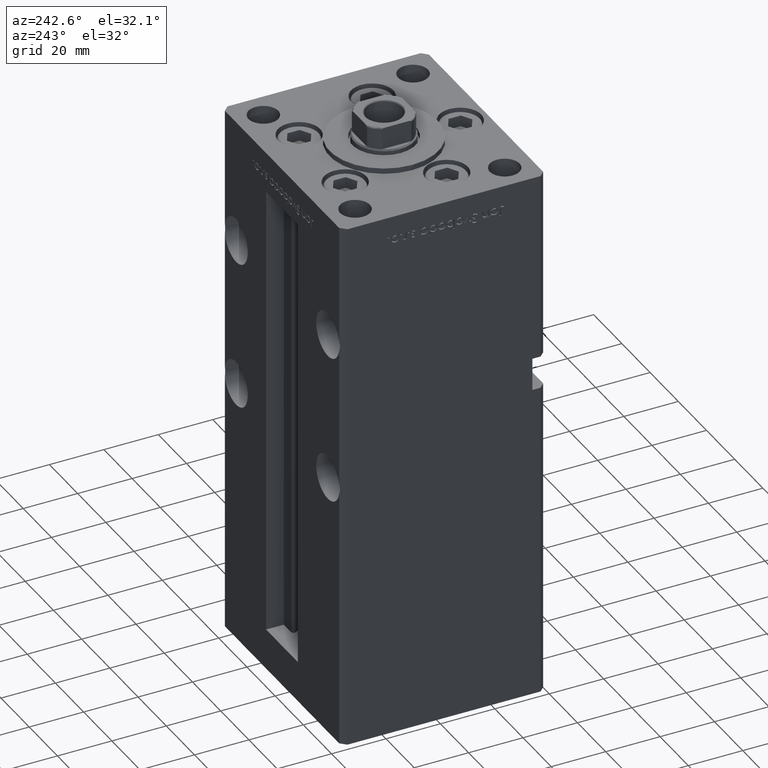
[diagram: clean part render]
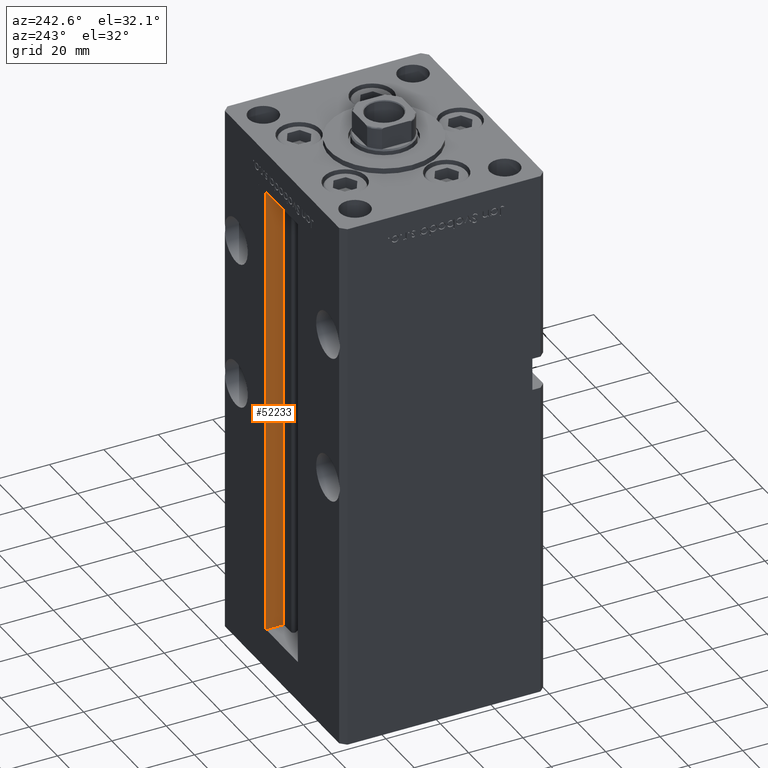
[diagram: same view with one face highlighted and labeled with its STEP entity id]
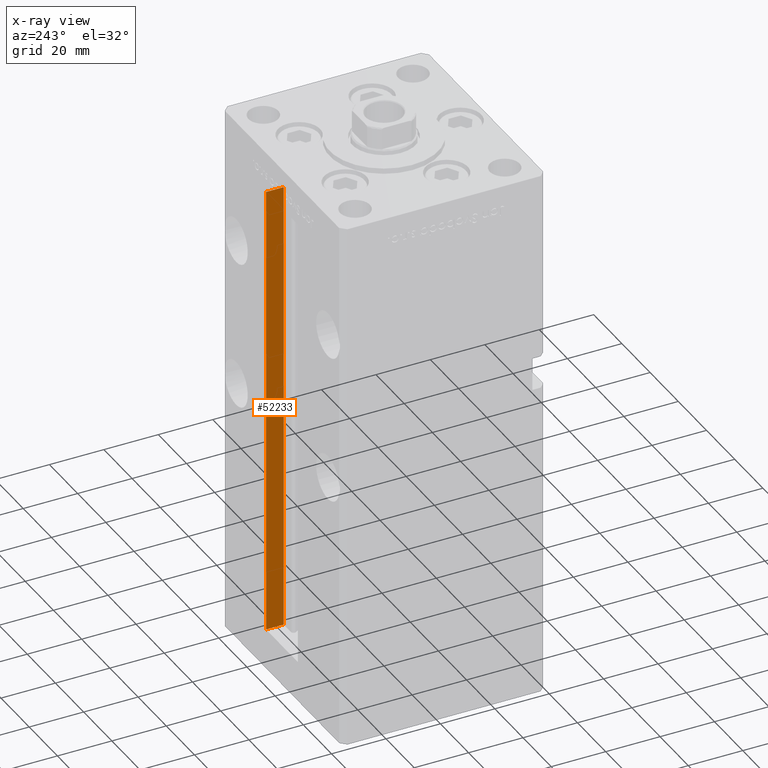
[diagram: x-ray of the same camera — body ghosted, the highlighted face saturated]
A machine part, auxiliary view. The second image highlights one B-rep face of the part: STEP entity #52233.
The next image is the same camera in x-ray: the body ghosted, the highlighted face saturated — about 0% of this face is hidden behind the body in this view.
In plain terms, the highlighted planar face has unit normal (1, 0, 0).
Its self-contained STEP definition (entity closure, byte-faithful):
#285 = VERTEX_POINT ( 'NONE', #4088 ) ;
#4088 = CARTESIAN_POINT ( 'NONE',  ( 11.24999999999999822, 31.00000000000000000, 0.000000000000000000 ) ) ;
#4244 = CARTESIAN_POINT ( 'NONE',  ( 11.24999999999999822, 31.00000000000000000, 0.000000000000000000 ) ) ;
#8151 = LINE ( 'NONE', #20787, #9556 ) ;
#9070 = FACE_OUTER_BOUND ( 'NONE', #22772, .T. ) ;
#9556 = VECTOR ( 'NONE', #12710, 1000.000000000000000 ) ;
#11084 = DIRECTION ( 'NONE',  ( 0.000000000000000000, 1.000000000000000000, 0.000000000000000000 ) ) ;
#12292 = DIRECTION ( 'NONE',  ( 1.000000000000000000, -0.000000000000000000, 0.000000000000000000 ) ) ;
#12710 = DIRECTION ( 'NONE',  ( -0.000000000000000000, -1.000000000000000000, 0.000000000000000000 ) ) ;
#15392 = EDGE_CURVE ( 'NONE', #285, #18782, #47944, .T. ) ;
#15410 = ORIENTED_EDGE ( 'NONE', *, *, #52639, .F. ) ;
#18782 = VERTEX_POINT ( 'NONE', #23395 ) ;
#19368 = DIRECTION ( 'NONE',  ( -0.000000000000000000, -0.000000000000000000, 1.000000000000000000 ) ) ;
#20787 = CARTESIAN_POINT ( 'NONE',  ( 11.24999999999999822, 0.000000000000000000, 168.5000000000000000 ) ) ;
#21113 = CARTESIAN_POINT ( 'NONE',  ( 11.24999999999999822, 31.00000000000000000, 168.5000000000000000 ) ) ;
#21457 = VERTEX_POINT ( 'NONE', #21113 ) ;
#22772 = EDGE_LOOP ( 'NONE', ( #15410, #46150, #32090, #28924 ) ) ;
#22922 = CARTESIAN_POINT ( 'NONE',  ( 11.24999999999999822, 31.00000000000000000, 0.000000000000000000 ) ) ;
#23395 = CARTESIAN_POINT ( 'NONE',  ( 11.24999999999999822, 37.50000000000000000, 0.000000000000000000 ) ) ;
#24079 = CARTESIAN_POINT ( 'NONE',  ( 11.24999999999999822, 37.50000000000000000, 0.000000000000000000 ) ) ;
#27049 = VECTOR ( 'NONE', #32156, 1000.000000000000000 ) ;
#27592 = LINE ( 'NONE', #24079, #27049 ) ;
#28782 = AXIS2_PLACEMENT_3D ( 'NONE', #4244, #12292, #33288 ) ;
#28924 = ORIENTED_EDGE ( 'NONE', *, *, #34839, .F. ) ;
#32014 = LINE ( 'NONE', #44650, #51689 ) ;
#32090 = ORIENTED_EDGE ( 'NONE', *, *, #40456, .T. ) ;
#32156 = DIRECTION ( 'NONE',  ( -0.000000000000000000, -0.000000000000000000, 1.000000000000000000 ) ) ;
#33288 = DIRECTION ( 'NONE',  ( 0.000000000000000000, 0.000000000000000000, -1.000000000000000000 ) ) ;
#34489 = VECTOR ( 'NONE', #11084, 1000.000000000000000 ) ;
#34839 = EDGE_CURVE ( 'NONE', #40705, #21457, #8151, .T. ) ;
#37586 = PLANE ( 'NONE',  #28782 ) ;
#40456 = EDGE_CURVE ( 'NONE', #285, #21457, #32014, .T. ) ;
#40705 = VERTEX_POINT ( 'NONE', #44318 ) ;
#44318 = CARTESIAN_POINT ( 'NONE',  ( 11.24999999999999112, 37.50000000000000000, 168.5000000000000000 ) ) ;
#44650 = CARTESIAN_POINT ( 'NONE',  ( 11.24999999999999822, 31.00000000000000000, 0.000000000000000000 ) ) ;
#46150 = ORIENTED_EDGE ( 'NONE', *, *, #15392, .F. ) ;
#47944 = LINE ( 'NONE', #22922, #34489 ) ;
#51689 = VECTOR ( 'NONE', #19368, 1000.000000000000000 ) ;
#52233 = ADVANCED_FACE ( 'NONE', ( #9070 ), #37586, .F. ) ;
#52639 = EDGE_CURVE ( 'NONE', #18782, #40705, #27592, .T. ) ;